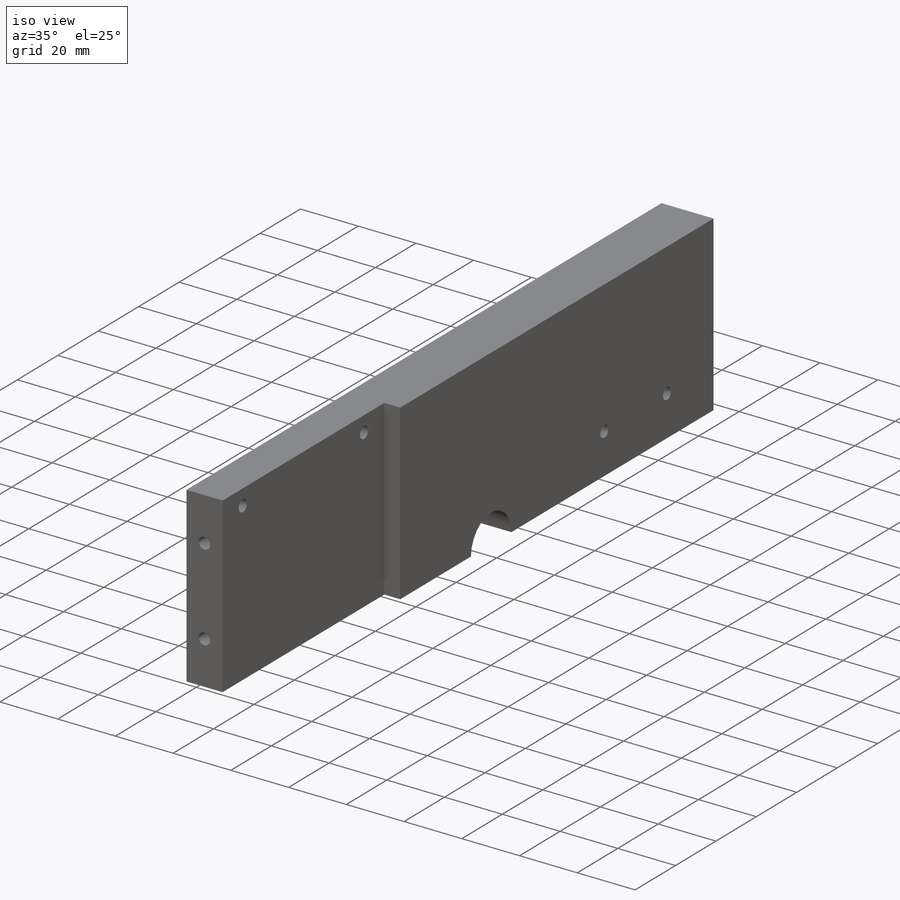
[diagram: iso view]
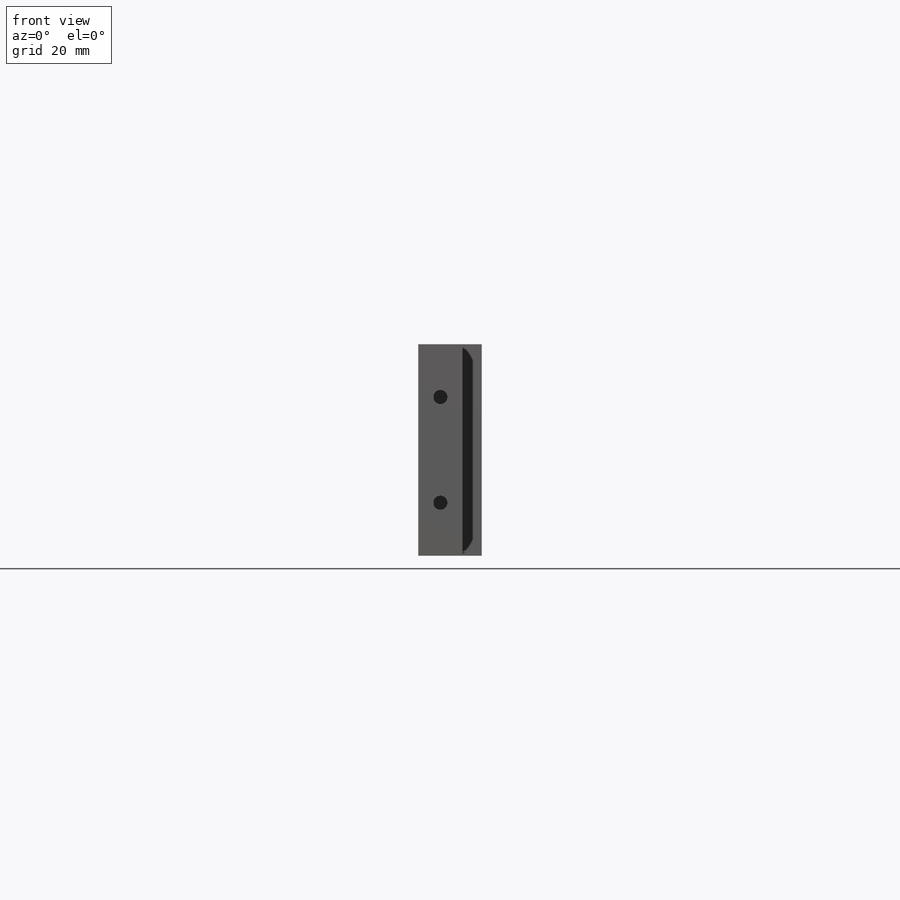
[diagram: front view]
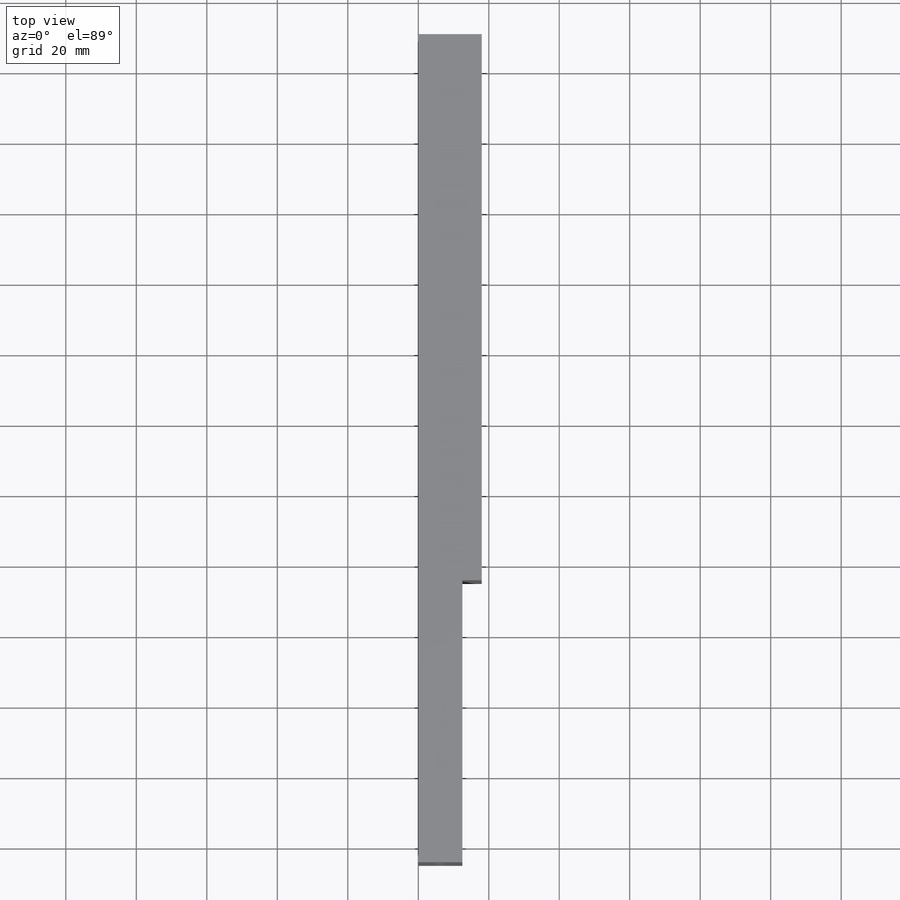
[diagram: top view]
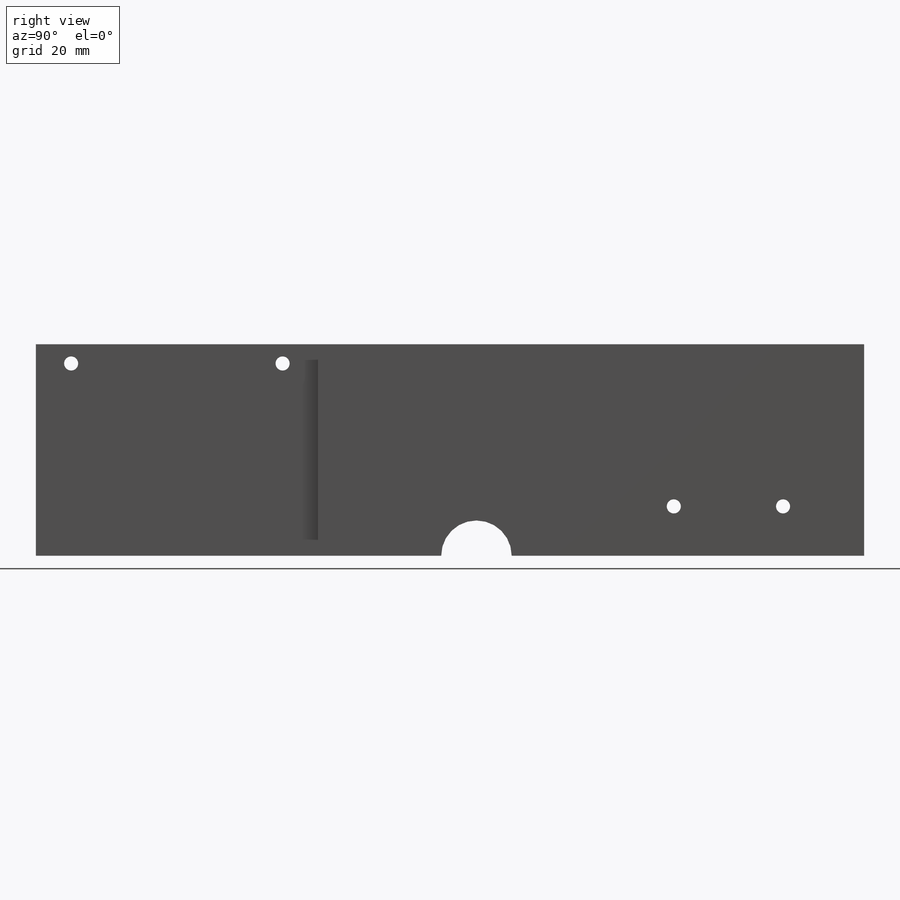
[diagram: right view]
SOLIDWORKS PART (.sldprt)
format: sldprt  version: not decoded by parser v0  size: 397,824 bytes
history: native  units: mm
features: sketch x5, plane x4, extrude x2, material x1, cut_extrude x1 (+9 scaffold rows collapsed)
feature tree (22):
  scaffold x9  (default folders/planes/origin — collapsed)
  material  "Pin"
  plane  "Plan de face"
  plane  "Plan de dessus"
  plane  "Plan de droite"
  sketch  "Esquisse1"  dims[c1.D4=4.0mm c1.D9=4.0mm c1.D12=10.0mm c1.D1=60.0mm c1.D2=235.0mm c1.D3=54.55mm c1.D5=60.0mm c1.D6=10.0mm c1.D7=14.0mm c1.D8=68.0mm c1.D10=80.0mm c2.D7=9.0mm c2.D8=14.0mm c2.D11=68.0mm c2.D13=45.0mm c2.D14=8.0mm]
  extrude  "Boss.-Extru.2"  Depth=12.5mm
  extrude  "Boss.-Extru.3"  [1 undecoded]
  sketch  "Esquisse1<3>"  dims[D1=18.0mm]
  plane  "Plan1"
  sketch  "Esquisse5"  dims[D1=4.0mm D2=15.0mm]
  cut_extrude  "Enlèv. mat.-Extru.2"  Depth=10mm
  sketch  "Esquisse6"  dims[D1=15.0mm]
  sketch  "Esquisse7"  dims[D1=15.0mm]
decode coverage: 7 of 8 modeling features carry decoded parameters
note: 1 parameter value undecoded
note: suppression state not decoded; provenance and decode notes live in map.json
